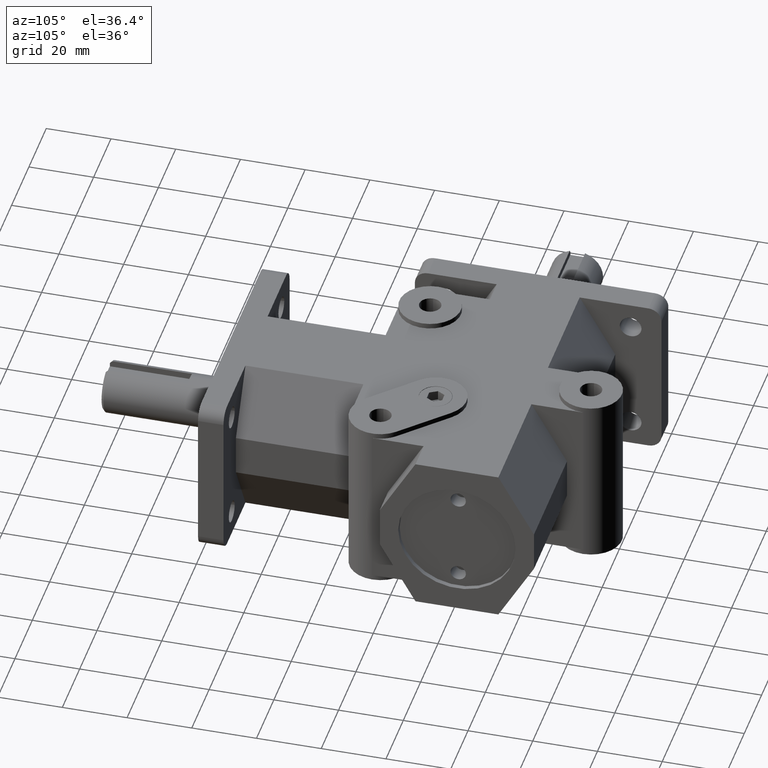
[diagram: clean part render]
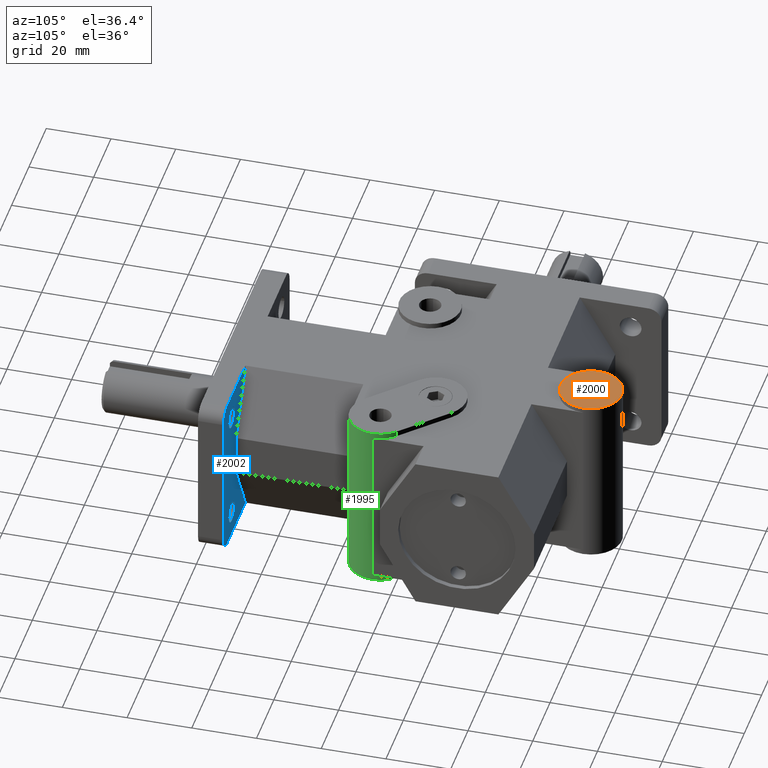
[diagram: same view with three faces highlighted in distinct colors, each labeled with its STEP entity id]
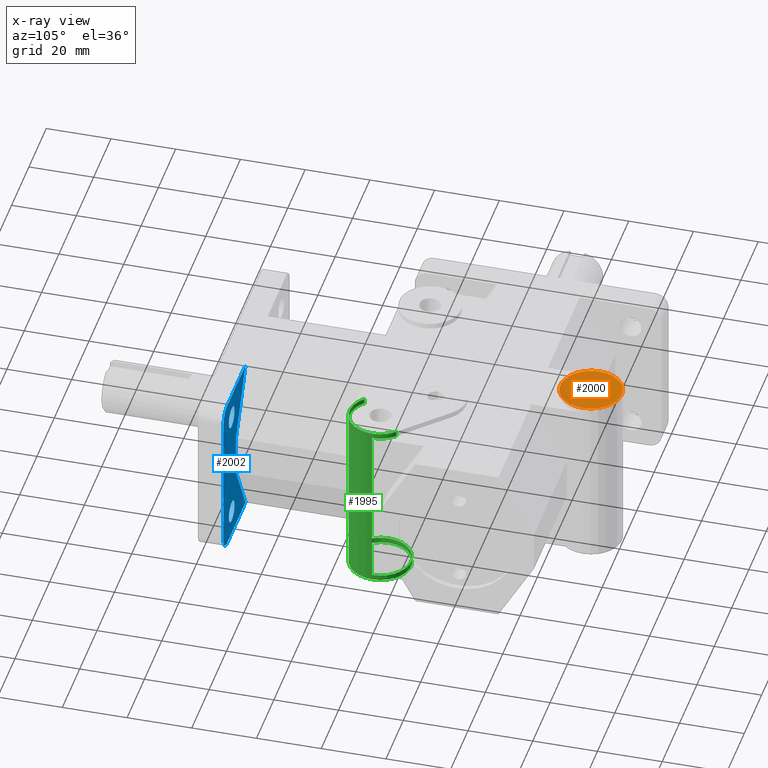
[diagram: x-ray of the same camera — body ghosted, the three highlighted faces saturated]
A machine part, auxiliary view with three faces highlighted in distinct colors.
The next image is the same camera in x-ray (body ghosted, the three faces saturated) — at least one of them is partly hidden behind the body in this view.
Their STEP definitions:

[orange] entity #2000 — the highlighted planar face has unit normal (0, 0, 1).
#46=FACE_BOUND('',#353,.T.);
#110=PLANE('',#2207);
#218=FACE_OUTER_BOUND('',#352,.T.);
#352=EDGE_LOOP('',(#1751));
#353=EDGE_LOOP('',(#1752));
#843=CIRCLE('',#2193,0.1325);
#849=CIRCLE('',#2208,0.375);
#1026=VERTEX_POINT('',#3322);
#1034=VERTEX_POINT('',#3355);
#1281=EDGE_CURVE('',#1026,#1026,#843,.T.);
#1296=EDGE_CURVE('',#1034,#1034,#849,.T.);
#1751=ORIENTED_EDGE('',*,*,#1296,.F.);
#1752=ORIENTED_EDGE('',*,*,#1281,.T.);
#2000=ADVANCED_FACE('',(#218,#46),#110,.T.);
#2193=AXIS2_PLACEMENT_3D('',#3324,#2712,#2713);
#2207=AXIS2_PLACEMENT_3D('',#3354,#2749,#2750);
#2208=AXIS2_PLACEMENT_3D('',#3356,#2751,#2752);
#2712=DIRECTION('center_axis',(0.,0.,-1.));
#2713=DIRECTION('ref_axis',(1.,0.,0.));
#2749=DIRECTION('center_axis',(0.,0.,1.));
#2750=DIRECTION('ref_axis',(-1.,0.,0.));
#2751=DIRECTION('center_axis',(0.,0.,-1.));
#2752=DIRECTION('ref_axis',(1.,0.,0.));
#3322=CARTESIAN_POINT('',(-0.1325,4.38,1.065));
#3324=CARTESIAN_POINT('Origin',(0.,4.38,1.065));
#3354=CARTESIAN_POINT('Origin',(0.0340909090909091,4.38,1.065));
#3355=CARTESIAN_POINT('',(-0.375,4.38,1.065));
#3356=CARTESIAN_POINT('Origin',(0.,4.38,1.065));

[blue] entity #2002 — the highlighted planar face has unit normal (0, 1, 0).
#48=FACE_BOUND('',#357,.T.);
#49=FACE_BOUND('',#358,.T.);
#112=PLANE('',#2211);
#220=FACE_OUTER_BOUND('',#356,.T.);
#356=EDGE_LOOP('',(#1755,#1756,#1757,#1758,#1759,#1760,#1761,#1762));
#357=EDGE_LOOP('',(#1763));
#358=EDGE_LOOP('',(#1764));
#419=LINE('',#2983,#610);
#458=LINE('',#3077,#649);
#539=LINE('',#3297,#730);
#543=LINE('',#3305,#734);
#557=LINE('',#3361,#748);
#558=LINE('',#3362,#749);
#610=VECTOR('',#2409,1.);
#649=VECTOR('',#2474,1.);
#730=VECTOR('',#2685,0.999999999999999);
#734=VECTOR('',#2691,0.999999999999999);
#748=VECTOR('',#2759,1.);
#749=VECTOR('',#2760,1.);
#787=CIRCLE('',#2075,0.16);
#789=CIRCLE('',#2078,0.16);
#830=CIRCLE('',#2162,0.1325);
#831=CIRCLE('',#2164,0.1325);
#873=VERTEX_POINT('',#2885);
#874=VERTEX_POINT('',#2887);
#877=VERTEX_POINT('',#2894);
#878=VERTEX_POINT('',#2896);
#913=VERTEX_POINT('',#2982);
#955=VERTEX_POINT('',#3075);
#1001=VERTEX_POINT('',#3236);
#1002=VERTEX_POINT('',#3240);
#1017=VERTEX_POINT('',#3296);
#1020=VERTEX_POINT('',#3304);
#1067=EDGE_CURVE('',#873,#874,#787,.T.);
#1071=EDGE_CURVE('',#877,#878,#789,.T.);
#1113=EDGE_CURVE('',#913,#874,#419,.T.);
#1163=EDGE_CURVE('',#877,#955,#458,.T.);
#1238=EDGE_CURVE('',#1001,#1001,#830,.T.);
#1240=EDGE_CURVE('',#1002,#1002,#831,.T.);
#1267=EDGE_CURVE('',#1017,#955,#539,.F.);
#1271=EDGE_CURVE('',#913,#1020,#543,.F.);
#1298=EDGE_CURVE('',#878,#873,#557,.T.);
#1299=EDGE_CURVE('',#1020,#1017,#558,.T.);
#1755=ORIENTED_EDGE('',*,*,#1067,.F.);
#1756=ORIENTED_EDGE('',*,*,#1298,.F.);
#1757=ORIENTED_EDGE('',*,*,#1071,.F.);
#1758=ORIENTED_EDGE('',*,*,#1163,.T.);
#1759=ORIENTED_EDGE('',*,*,#1267,.F.);
#1760=ORIENTED_EDGE('',*,*,#1299,.F.);
#1761=ORIENTED_EDGE('',*,*,#1271,.F.);
#1762=ORIENTED_EDGE('',*,*,#1113,.T.);
#1763=ORIENTED_EDGE('',*,*,#1238,.T.);
#1764=ORIENTED_EDGE('',*,*,#1240,.T.);
#2002=ADVANCED_FACE('',(#220,#48,#49),#112,.T.);
#2075=AXIS2_PLACEMENT_3D('',#2888,#2322,#2323);
#2078=AXIS2_PLACEMENT_3D('',#2897,#2330,#2331);
#2162=AXIS2_PLACEMENT_3D('',#3238,#2620,#2621);
#2164=AXIS2_PLACEMENT_3D('',#3242,#2625,#2626);
#2211=AXIS2_PLACEMENT_3D('',#3360,#2757,#2758);
#2322=DIRECTION('center_axis',(0.,-1.,0.));
#2323=DIRECTION('ref_axis',(0.707106781186548,0.,0.707106781186548));
#2330=DIRECTION('center_axis',(0.,-1.,0.));
#2331=DIRECTION('ref_axis',(0.707106781186548,0.,-0.707106781186548));
#2409=DIRECTION('',(1.,0.,0.));
#2474=DIRECTION('',(-1.,0.,0.));
#2620=DIRECTION('center_axis',(0.,-1.,0.));
#2621=DIRECTION('ref_axis',(1.,0.,0.));
#2625=DIRECTION('center_axis',(0.,-1.,0.));
#2626=DIRECTION('ref_axis',(1.,0.,0.));
#2685=DIRECTION('',(0.500000258168844,0.,0.866025254730536));
#2691=DIRECTION('',(-0.500000258168844,0.,0.866025254730536));
#2757=DIRECTION('center_axis',(0.,1.,0.));
#2758=DIRECTION('ref_axis',(0.,0.,-1.));
#2759=DIRECTION('',(0.,0.,1.));
#2760=DIRECTION('',(0.,0.,-1.));
#2885=CARTESIAN_POINT('',(1.5,0.31,0.84));
#2887=CARTESIAN_POINT('',(1.34,0.31,1.));
#2888=CARTESIAN_POINT('Origin',(1.34,0.31,0.84));
#2894=CARTESIAN_POINT('',(1.34,0.31,-1.));
#2896=CARTESIAN_POINT('',(1.5,0.31,-0.84));
#2897=CARTESIAN_POINT('Origin',(1.34,0.31,-0.84));
#2982=CARTESIAN_POINT('',(0.504487,0.31,1.));
#2983=CARTESIAN_POINT('',(0.9375,0.31,1.));
#3075=CARTESIAN_POINT('',(0.504487,0.31,-1.));
#3077=CARTESIAN_POINT('',(0.75,0.31,-1.));
#3236=CARTESIAN_POINT('',(0.9925,0.31,0.6865));
#3238=CARTESIAN_POINT('Origin',(1.125,0.31,0.6865));
#3240=CARTESIAN_POINT('',(0.9925,0.31,-0.6865));
#3242=CARTESIAN_POINT('Origin',(1.125,0.31,-0.6865));
#3296=CARTESIAN_POINT('',(0.9375,0.31,-0.25));
#3297=CARTESIAN_POINT('',(0.953685928978257,0.31,-0.221965167942549));
#3304=CARTESIAN_POINT('',(0.9375,0.31,0.25));
#3305=CARTESIAN_POINT('',(0.953685928978257,0.31,0.221965167942549));
#3360=CARTESIAN_POINT('Origin',(1.5,0.31,0.));
#3361=CARTESIAN_POINT('',(1.5,0.31,0.));
#3362=CARTESIAN_POINT('',(0.9375,0.31,0.));

[green] entity #1995 — the highlighted cylindrical surface (bore or boss wall) has radius 9.525 mm, axis along (0, 0, -1).
#213=FACE_OUTER_BOUND('',#342,.T.);
#342=EDGE_LOOP('',(#1727,#1728,#1729,#1730,#1731,#1732,#1733,#1734,#1735,
#1736,#1737,#1738));
#550=LINE('',#3330,#741);
#552=LINE('',#3337,#743);
#554=LINE('',#3342,#745);
#555=LINE('',#3343,#746);
#556=LINE('',#3345,#747);
#741=VECTOR('',#2718,1.);
#743=VECTOR('',#2726,1.);
#745=VECTOR('',#2732,0.375);
#746=VECTOR('',#2733,1.);
#747=VECTOR('',#2736,1.);
#808=CIRCLE('',#2106,0.375);
#810=CIRCLE('',#2108,0.375);
#817=CIRCLE('',#2117,0.375);
#818=CIRCLE('',#2118,0.375);
#845=CIRCLE('',#2199,0.375);
#846=CIRCLE('',#2200,0.375);
#915=VERTEX_POINT('',#2986);
#916=VERTEX_POINT('',#2988);
#919=VERTEX_POINT('',#2994);
#920=VERTEX_POINT('',#2996);
#951=VERTEX_POINT('',#3067);
#952=VERTEX_POINT('',#3069);
#953=VERTEX_POINT('',#3071);
#1028=VERTEX_POINT('',#3328);
#1030=VERTEX_POINT('',#3336);
#1031=VERTEX_POINT('',#3340);
#1116=EDGE_CURVE('',#915,#916,#808,.T.);
#1120=EDGE_CURVE('',#919,#920,#810,.T.);
#1159=EDGE_CURVE('',#951,#952,#817,.T.);
#1160=EDGE_CURVE('',#952,#953,#818,.T.);
#1284=EDGE_CURVE('',#1028,#919,#550,.T.);
#1287=EDGE_CURVE('',#1030,#916,#552,.T.);
#1289=EDGE_CURVE('',#1031,#1031,#845,.T.);
#1290=EDGE_CURVE('',#1031,#952,#554,.T.);
#1291=EDGE_CURVE('',#920,#951,#555,.T.);
#1292=EDGE_CURVE('',#1028,#1030,#846,.T.);
#1293=EDGE_CURVE('',#915,#953,#556,.T.);
#1727=ORIENTED_EDGE('',*,*,#1289,.T.);
#1728=ORIENTED_EDGE('',*,*,#1290,.T.);
#1729=ORIENTED_EDGE('',*,*,#1159,.F.);
#1730=ORIENTED_EDGE('',*,*,#1291,.F.);
#1731=ORIENTED_EDGE('',*,*,#1120,.F.);
#1732=ORIENTED_EDGE('',*,*,#1284,.F.);
#1733=ORIENTED_EDGE('',*,*,#1292,.T.);
#1734=ORIENTED_EDGE('',*,*,#1287,.T.);
#1735=ORIENTED_EDGE('',*,*,#1116,.F.);
#1736=ORIENTED_EDGE('',*,*,#1293,.T.);
#1737=ORIENTED_EDGE('',*,*,#1160,.F.);
#1738=ORIENTED_EDGE('',*,*,#1290,.F.);
#1908=CYLINDRICAL_SURFACE('',#2198,0.375);
#1995=ADVANCED_FACE('',(#213),#1908,.T.);
#2106=AXIS2_PLACEMENT_3D('',#2989,#2412,#2413);
#2108=AXIS2_PLACEMENT_3D('',#2997,#2418,#2419);
#2117=AXIS2_PLACEMENT_3D('',#3070,#2468,#2469);
#2118=AXIS2_PLACEMENT_3D('',#3072,#2470,#2471);
#2198=AXIS2_PLACEMENT_3D('',#3339,#2728,#2729);
#2199=AXIS2_PLACEMENT_3D('',#3341,#2730,#2731);
#2200=AXIS2_PLACEMENT_3D('',#3344,#2734,#2735);
#2412=DIRECTION('center_axis',(0.,0.,-1.));
#2413=DIRECTION('ref_axis',(1.,0.,0.));
#2418=DIRECTION('center_axis',(0.,0.,-1.));
#2419=DIRECTION('ref_axis',(1.,0.,0.));
#2468=DIRECTION('center_axis',(0.,0.,1.));
#2469=DIRECTION('ref_axis',(1.,0.,0.));
#2470=DIRECTION('center_axis',(0.,0.,1.));
#2471=DIRECTION('ref_axis',(1.,0.,0.));
#2718=DIRECTION('',(0.,0.,-1.));
#2726=DIRECTION('',(0.,0.,-1.));
#2728=DIRECTION('center_axis',(0.,0.,-1.));
#2729=DIRECTION('ref_axis',(1.,0.,0.));
#2730=DIRECTION('center_axis',(0.,0.,1.));
#2731=DIRECTION('ref_axis',(1.,0.,0.));
#2732=DIRECTION('',(0.,0.,1.));
#2733=DIRECTION('',(0.,0.,-1.));
#2734=DIRECTION('center_axis',(0.,0.,-1.));
#2735=DIRECTION('ref_axis',(1.,0.,0.));
#2736=DIRECTION('',(0.,0.,-1.));
#2986=CARTESIAN_POINT('',(1.13,1.745,1.));
#2988=CARTESIAN_POINT('',(0.864834957055043,1.85483495705505,1.));
#2989=CARTESIAN_POINT('Origin',(1.13,2.12,1.));
#2994=CARTESIAN_POINT('',(1.39516504294495,2.38516504294496,1.));
#2996=CARTESIAN_POINT('',(1.505,2.12,1.));
#2997=CARTESIAN_POINT('Origin',(1.13,2.12,1.));
#3067=CARTESIAN_POINT('',(1.505,2.12,-1.));
#3069=CARTESIAN_POINT('',(0.755,2.12,-1.));
#3070=CARTESIAN_POINT('Origin',(1.13,2.12,-1.));
#3071=CARTESIAN_POINT('',(1.13,1.745,-1.));
#3072=CARTESIAN_POINT('Origin',(1.13,2.12,-1.));
#3328=CARTESIAN_POINT('',(1.39516504294495,2.38516504294496,1.065));
#3330=CARTESIAN_POINT('',(1.39516504294495,2.38516504294496,0.));
#3336=CARTESIAN_POINT('',(0.864834957055043,1.85483495705505,1.065));
#3337=CARTESIAN_POINT('',(0.864834957055044,1.85483495705504,0.));
#3339=CARTESIAN_POINT('Origin',(1.13,2.12,0.));
#3340=CARTESIAN_POINT('',(0.755,2.12,-1.065));
#3341=CARTESIAN_POINT('Origin',(1.13,2.12,-1.065));
#3342=CARTESIAN_POINT('',(0.755,2.12,0.));
#3343=CARTESIAN_POINT('',(1.505,2.12,0.));
#3344=CARTESIAN_POINT('Origin',(1.13,2.12,1.065));
#3345=CARTESIAN_POINT('',(1.13,1.745,0.));